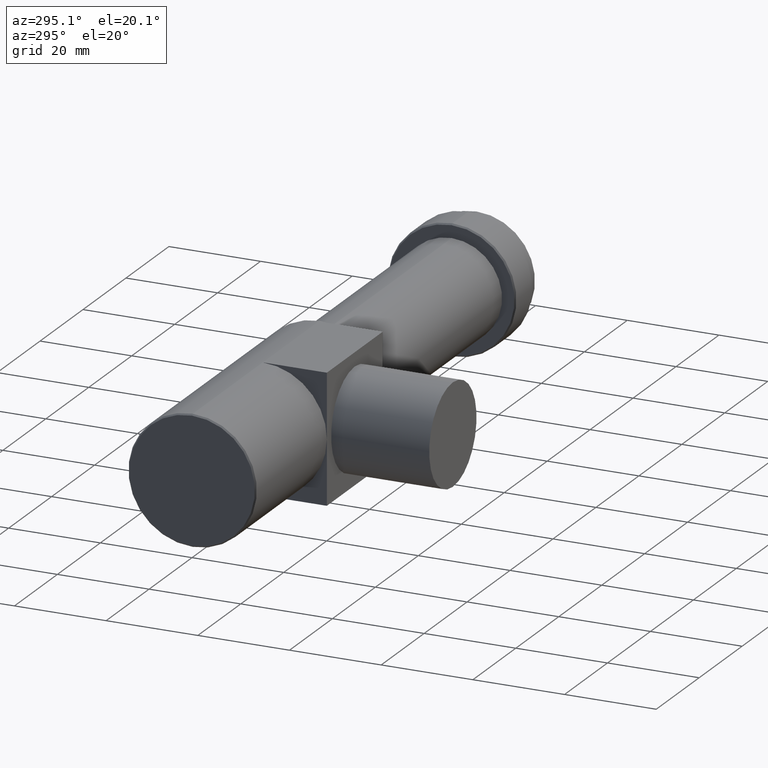
[diagram: clean part render]
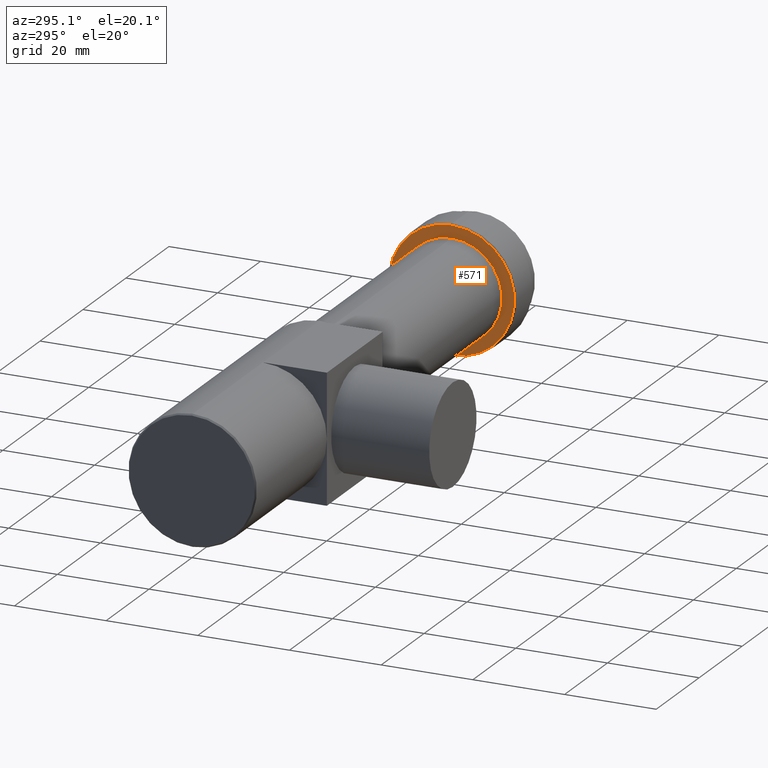
[diagram: same view with one face highlighted and labeled with its STEP entity id]
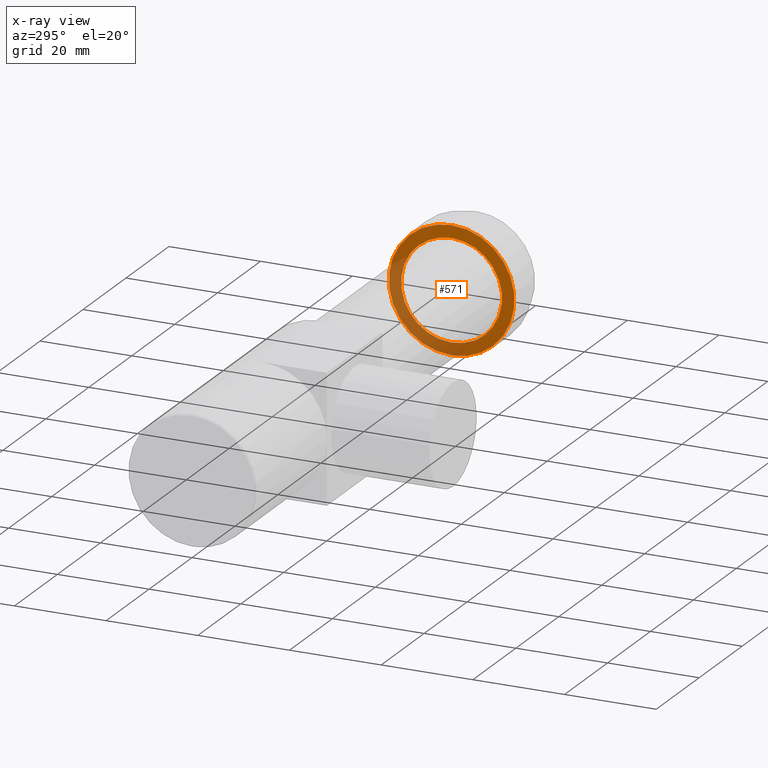
[diagram: x-ray of the same camera — body ghosted, the highlighted face saturated]
A machine part, auxiliary view. The second image highlights one B-rep face of the part: STEP entity #571.
The next image is the same camera in x-ray: the body ghosted, the highlighted face saturated — about 34% of this face is hidden behind the body in this view.
In plain terms, the highlighted planar face has unit normal (1, 0, 0).
Its self-contained STEP definition (entity closure, byte-faithful):
#45 = CIRCLE ( 'NONE', #448, 11.00000000000000000 ) ;
#46 = FACE_OUTER_BOUND ( 'NONE', #1098, .T. ) ;
#101 = CARTESIAN_POINT ( 'NONE',  ( 120.9000000000000100, 0.0000000000000000000, 0.0000000000000000000 ) ) ;
#121 = VERTEX_POINT ( 'NONE', #492 ) ;
#126 = DIRECTION ( 'NONE',  ( 1.000000000000000000, 0.0000000000000000000, 0.0000000000000000000 ) ) ;
#155 = AXIS2_PLACEMENT_3D ( 'NONE', #388, #734, #991 ) ;
#264 = AXIS2_PLACEMENT_3D ( 'NONE', #101, #437, #701 ) ;
#276 = CARTESIAN_POINT ( 'NONE',  ( 120.9000000000000100, 1.347111479062088400E-015, -11.00000000000000000 ) ) ;
#296 = ORIENTED_EDGE ( 'NONE', *, *, #935, .F. ) ;
#326 = CIRCLE ( 'NONE', #1049, 13.70000000000000100 ) ;
#328 = CARTESIAN_POINT ( 'NONE',  ( 120.9000000000000100, 0.0000000000000000000, 11.00000000000000000 ) ) ;
#358 = CARTESIAN_POINT ( 'NONE',  ( 120.9000000000000100, 1.696135816819084200E-015, 13.70000000000000100 ) ) ;
#388 = CARTESIAN_POINT ( 'NONE',  ( 120.9000000000000100, 0.0000000000000000000, 0.0000000000000000000 ) ) ;
#394 = EDGE_CURVE ( 'NONE', #121, #978, #326, .T. ) ;
#432 = DIRECTION ( 'NONE',  ( 0.0000000000000000000, 0.0000000000000000000, 1.000000000000000000 ) ) ;
#437 = DIRECTION ( 'NONE',  ( -1.000000000000000000, -0.0000000000000000000, -0.0000000000000000000 ) ) ;
#448 = AXIS2_PLACEMENT_3D ( 'NONE', #657, #744, #832 ) ;
#492 = CARTESIAN_POINT ( 'NONE',  ( 120.9000000000000100, 0.0000000000000000000, -13.70000000000000100 ) ) ;
#541 = FACE_BOUND ( 'NONE', #670, .T. ) ;
#557 = PLANE ( 'NONE',  #806 ) ;
#571 = ADVANCED_FACE ( 'NONE', ( #541, #46 ), #557, .F. ) ;
#633 = CARTESIAN_POINT ( 'NONE',  ( 120.9000000000000100, 11.00000000000000000, 0.0000000000000000000 ) ) ;
#649 = CIRCLE ( 'NONE', #264, 11.00000000000000000 ) ;
#657 = CARTESIAN_POINT ( 'NONE',  ( 120.9000000000000100, 0.0000000000000000000, 0.0000000000000000000 ) ) ;
#670 = EDGE_LOOP ( 'NONE', ( #1037, #296 ) ) ;
#701 = DIRECTION ( 'NONE',  ( 0.0000000000000000000, 0.0000000000000000000, 1.000000000000000000 ) ) ;
#714 = EDGE_CURVE ( 'NONE', #978, #121, #1090, .T. ) ;
#734 = DIRECTION ( 'NONE',  ( -1.000000000000000000, -0.0000000000000000000, -0.0000000000000000000 ) ) ;
#744 = DIRECTION ( 'NONE',  ( -1.000000000000000000, -0.0000000000000000000, -0.0000000000000000000 ) ) ;
#753 = VERTEX_POINT ( 'NONE', #328 ) ;
#792 = DIRECTION ( 'NONE',  ( -1.000000000000000000, -0.0000000000000000000, -0.0000000000000000000 ) ) ;
#802 = EDGE_CURVE ( 'NONE', #753, #1080, #45, .T. ) ;
#806 = AXIS2_PLACEMENT_3D ( 'NONE', #633, #126, #807 ) ;
#807 = DIRECTION ( 'NONE',  ( 0.0000000000000000000, 0.0000000000000000000, -1.000000000000000000 ) ) ;
#832 = DIRECTION ( 'NONE',  ( 0.0000000000000000000, 0.0000000000000000000, 1.000000000000000000 ) ) ;
#935 = EDGE_CURVE ( 'NONE', #1080, #753, #649, .T. ) ;
#978 = VERTEX_POINT ( 'NONE', #358 ) ;
#991 = DIRECTION ( 'NONE',  ( 0.0000000000000000000, 0.0000000000000000000, 1.000000000000000000 ) ) ;
#1019 = ORIENTED_EDGE ( 'NONE', *, *, #394, .T. ) ;
#1032 = CARTESIAN_POINT ( 'NONE',  ( 120.9000000000000100, 0.0000000000000000000, 0.0000000000000000000 ) ) ;
#1037 = ORIENTED_EDGE ( 'NONE', *, *, #802, .F. ) ;
#1049 = AXIS2_PLACEMENT_3D ( 'NONE', #1032, #792, #432 ) ;
#1068 = ORIENTED_EDGE ( 'NONE', *, *, #714, .T. ) ;
#1080 = VERTEX_POINT ( 'NONE', #276 ) ;
#1090 = CIRCLE ( 'NONE', #155, 13.70000000000000100 ) ;
#1098 = EDGE_LOOP ( 'NONE', ( #1019, #1068 ) ) ;